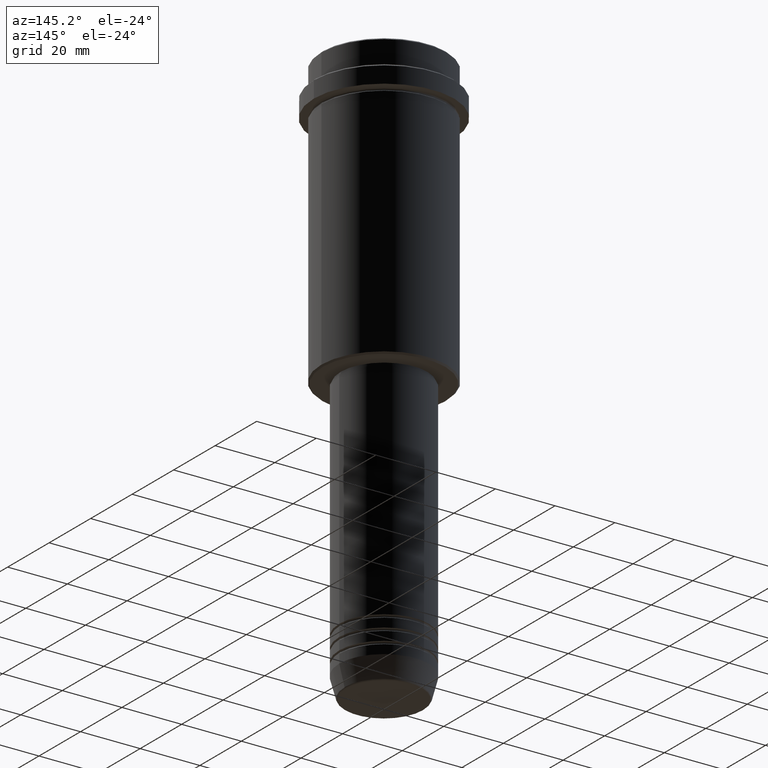
[diagram: clean part render]
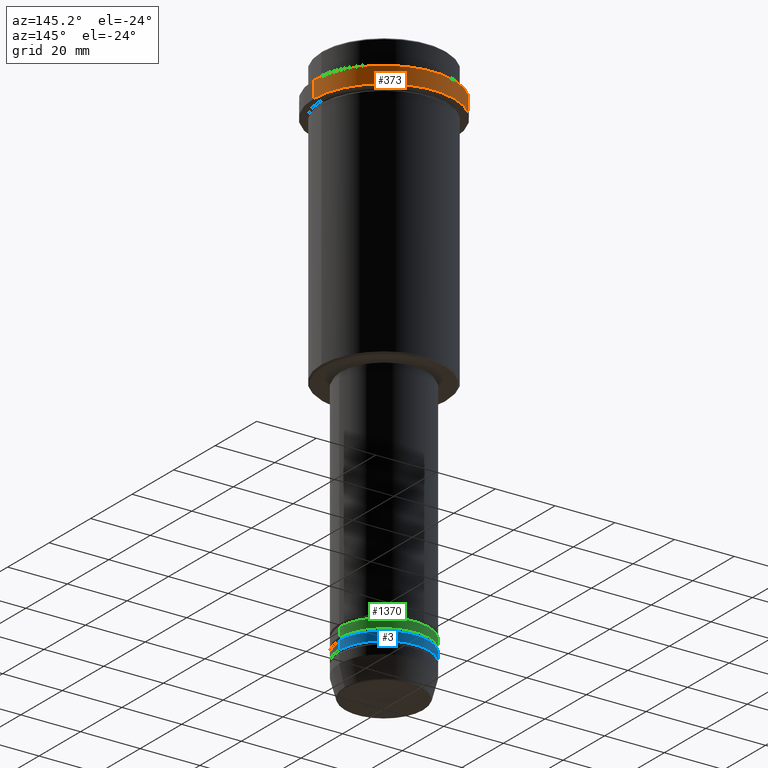
[diagram: same view with three faces highlighted in distinct colors, each labeled with its STEP entity id]
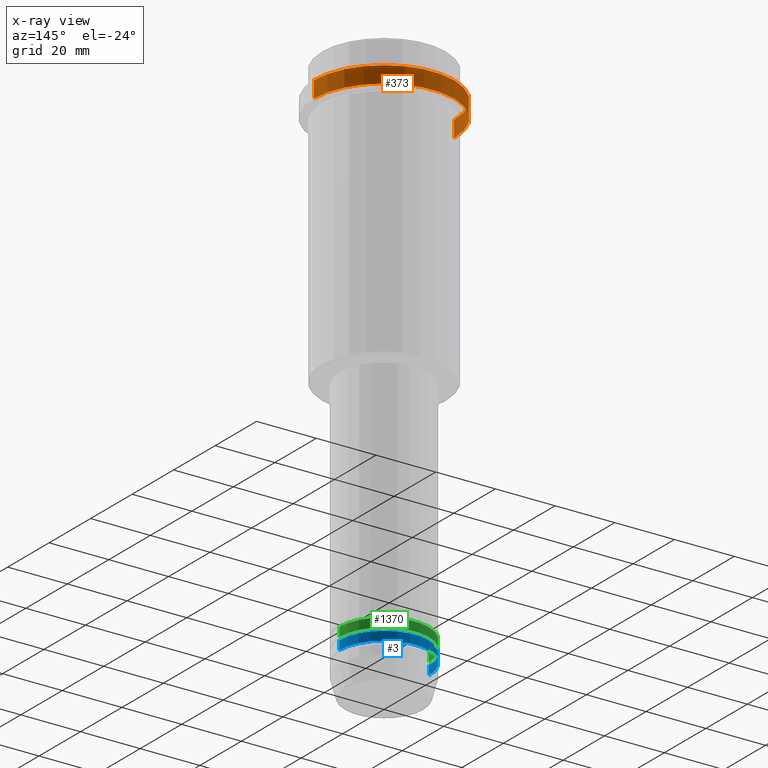
[diagram: x-ray of the same camera — body ghosted, the three highlighted faces saturated]
A machine part, auxiliary view with three faces highlighted in distinct colors.
The next image is the same camera in x-ray (body ghosted, the three faces saturated) — at least one of them is partly hidden behind the body in this view.
Their STEP definitions:

[orange] entity #373 — the highlighted cylindrical surface (partial cylindrical patch) has radius 23.5 mm, axis along (-0, -0, 1).
#17 = DIRECTION ( 'NONE',  ( -0.000000000000000000, -0.000000000000000000, 1.000000000000000000 ) ) ;
#21 = CARTESIAN_POINT ( 'NONE',  ( 23.50000000000000000, 0.000000000000000000, 0.000000000000000000 ) ) ;
#197 = CYLINDRICAL_SURFACE ( 'NONE', #679, 23.50000000000000000 ) ;
#198 = VERTEX_POINT ( 'NONE', #1050 ) ;
#216 = ORIENTED_EDGE ( 'NONE', *, *, #486, .F. ) ;
#327 = DIRECTION ( 'NONE',  ( 1.000000000000000000, 0.000000000000000000, 0.000000000000000000 ) ) ;
#339 = DIRECTION ( 'NONE',  ( 0.000000000000000000, 0.000000000000000000, -1.000000000000000000 ) ) ;
#366 = DIRECTION ( 'NONE',  ( 1.000000000000000000, 0.000000000000000000, 0.000000000000000000 ) ) ;
#373 = ADVANCED_FACE ( 'NONE', ( #870 ), #197, .T. ) ;
#398 = CARTESIAN_POINT ( 'NONE',  ( 23.50000000000000000, 0.000000000000000000, -9.500000000000000000 ) ) ;
#404 = VECTOR ( 'NONE', #17, 1000.000000000000000 ) ;
#440 = EDGE_CURVE ( 'NONE', #777, #1073, #980, .T. ) ;
#456 = EDGE_CURVE ( 'NONE', #198, #804, #1088, .T. ) ;
#486 = EDGE_CURVE ( 'NONE', #198, #1073, #692, .T. ) ;
#510 = EDGE_CURVE ( 'NONE', #804, #777, #890, .T. ) ;
#579 = CARTESIAN_POINT ( 'NONE',  ( -23.50000000000000000, 2.877919977996280320E-15, 0.000000000000000000 ) ) ;
#623 = CARTESIAN_POINT ( 'NONE',  ( -23.50000000000000711, 2.877919977996281109E-15, -15.00000000000000000 ) ) ;
#639 = EDGE_LOOP ( 'NONE', ( #936, #898, #1220, #216 ) ) ;
#679 = AXIS2_PLACEMENT_3D ( 'NONE', #1388, #1082, #327 ) ;
#681 = VECTOR ( 'NONE', #1015, 1000.000000000000000 ) ;
#692 = LINE ( 'NONE', #21, #404 ) ;
#744 = CARTESIAN_POINT ( 'NONE',  ( -23.50000000000000000, 2.877919977996280320E-15, -9.500000000000000000 ) ) ;
#777 = VERTEX_POINT ( 'NONE', #744 ) ;
#783 = DIRECTION ( 'NONE',  ( -0.000000000000000000, -0.000000000000000000, 1.000000000000000000 ) ) ;
#794 = AXIS2_PLACEMENT_3D ( 'NONE', #1311, #339, #1001 ) ;
#804 = VERTEX_POINT ( 'NONE', #623 ) ;
#870 = FACE_OUTER_BOUND ( 'NONE', #639, .T. ) ;
#890 = LINE ( 'NONE', #579, #681 ) ;
#898 = ORIENTED_EDGE ( 'NONE', *, *, #510, .T. ) ;
#936 = ORIENTED_EDGE ( 'NONE', *, *, #456, .T. ) ;
#980 = CIRCLE ( 'NONE', #794, 23.50000000000000000 ) ;
#1001 = DIRECTION ( 'NONE',  ( 1.000000000000000000, 0.000000000000000000, 0.000000000000000000 ) ) ;
#1015 = DIRECTION ( 'NONE',  ( -0.000000000000000000, -0.000000000000000000, 1.000000000000000000 ) ) ;
#1050 = CARTESIAN_POINT ( 'NONE',  ( 23.50000000000000355, 0.000000000000000000, -15.00000000000000000 ) ) ;
#1073 = VERTEX_POINT ( 'NONE', #398 ) ;
#1082 = DIRECTION ( 'NONE',  ( -0.000000000000000000, -0.000000000000000000, 1.000000000000000000 ) ) ;
#1088 = CIRCLE ( 'NONE', #1409, 23.50000000000000355 ) ;
#1220 = ORIENTED_EDGE ( 'NONE', *, *, #440, .T. ) ;
#1311 = CARTESIAN_POINT ( 'NONE',  ( 0.000000000000000000, 0.000000000000000000, -9.500000000000000000 ) ) ;
#1321 = CARTESIAN_POINT ( 'NONE',  ( 0.000000000000000000, 0.000000000000000000, -15.00000000000000000 ) ) ;
#1388 = CARTESIAN_POINT ( 'NONE',  ( 0.000000000000000000, 0.000000000000000000, 0.000000000000000000 ) ) ;
#1409 = AXIS2_PLACEMENT_3D ( 'NONE', #1321, #783, #366 ) ;

[blue] entity #3 — the highlighted cylindrical surface (partial cylindrical patch) has radius 15 mm, axis along (-0, -0, 1).
#3 = ADVANCED_FACE ( 'NONE', ( #1227 ), #746, .T. ) ;
#121 = DIRECTION ( 'NONE',  ( -0.000000000000000000, -0.000000000000000000, 1.000000000000000000 ) ) ;
#127 = CIRCLE ( 'NONE', #725, 15.00000000000000000 ) ;
#170 = CARTESIAN_POINT ( 'NONE',  ( -15.00000000000000000, 1.836970198721029589E-15, -178.9999999999998863 ) ) ;
#205 = CIRCLE ( 'NONE', #997, 15.00000000000000000 ) ;
#253 = LINE ( 'NONE', #1097, #1294 ) ;
#292 = VERTEX_POINT ( 'NONE', #311 ) ;
#298 = DIRECTION ( 'NONE',  ( -0.000000000000000000, -0.000000000000000000, 1.000000000000000000 ) ) ;
#311 = CARTESIAN_POINT ( 'NONE',  ( -15.00000000000000000, 1.836970198721029589E-15, -175.9999999999998863 ) ) ;
#356 = DIRECTION ( 'NONE',  ( 1.000000000000000000, 0.000000000000000000, 0.000000000000000000 ) ) ;
#381 = CARTESIAN_POINT ( 'NONE',  ( 0.000000000000000000, 0.000000000000000000, 0.000000000000000000 ) ) ;
#395 = DIRECTION ( 'NONE',  ( -0.000000000000000000, -0.000000000000000000, 1.000000000000000000 ) ) ;
#399 = EDGE_LOOP ( 'NONE', ( #1327, #1045, #644, #969 ) ) ;
#401 = CARTESIAN_POINT ( 'NONE',  ( 0.000000000000000000, 0.000000000000000000, -178.9999999999998863 ) ) ;
#470 = AXIS2_PLACEMENT_3D ( 'NONE', #381, #298, #1373 ) ;
#477 = EDGE_CURVE ( 'NONE', #947, #292, #253, .T. ) ;
#534 = VERTEX_POINT ( 'NONE', #587 ) ;
#538 = EDGE_CURVE ( 'NONE', #915, #292, #127, .T. ) ;
#564 = CARTESIAN_POINT ( 'NONE',  ( 15.00000000000000000, 0.000000000000000000, -175.9999999999998863 ) ) ;
#574 = CARTESIAN_POINT ( 'NONE',  ( 0.000000000000000000, 0.000000000000000000, -175.9999999999998863 ) ) ;
#587 = CARTESIAN_POINT ( 'NONE',  ( 15.00000000000000000, 0.000000000000000000, -178.9999999999998863 ) ) ;
#644 = ORIENTED_EDGE ( 'NONE', *, *, #538, .F. ) ;
#725 = AXIS2_PLACEMENT_3D ( 'NONE', #574, #1323, #356 ) ;
#726 = DIRECTION ( 'NONE',  ( -0.000000000000000000, -0.000000000000000000, 1.000000000000000000 ) ) ;
#746 = CYLINDRICAL_SURFACE ( 'NONE', #470, 15.00000000000000000 ) ;
#849 = LINE ( 'NONE', #1359, #1179 ) ;
#915 = VERTEX_POINT ( 'NONE', #564 ) ;
#947 = VERTEX_POINT ( 'NONE', #170 ) ;
#969 = ORIENTED_EDGE ( 'NONE', *, *, #1268, .F. ) ;
#997 = AXIS2_PLACEMENT_3D ( 'NONE', #401, #726, #1152 ) ;
#1045 = ORIENTED_EDGE ( 'NONE', *, *, #477, .T. ) ;
#1097 = CARTESIAN_POINT ( 'NONE',  ( -15.00000000000000000, 1.836970198721029589E-15, 0.000000000000000000 ) ) ;
#1152 = DIRECTION ( 'NONE',  ( 1.000000000000000000, 0.000000000000000000, 0.000000000000000000 ) ) ;
#1179 = VECTOR ( 'NONE', #395, 1000.000000000000000 ) ;
#1217 = EDGE_CURVE ( 'NONE', #534, #947, #205, .T. ) ;
#1227 = FACE_OUTER_BOUND ( 'NONE', #399, .T. ) ;
#1268 = EDGE_CURVE ( 'NONE', #534, #915, #849, .T. ) ;
#1294 = VECTOR ( 'NONE', #121, 1000.000000000000000 ) ;
#1323 = DIRECTION ( 'NONE',  ( -0.000000000000000000, -0.000000000000000000, 1.000000000000000000 ) ) ;
#1327 = ORIENTED_EDGE ( 'NONE', *, *, #1217, .T. ) ;
#1359 = CARTESIAN_POINT ( 'NONE',  ( 15.00000000000000000, 0.000000000000000000, 0.000000000000000000 ) ) ;
#1373 = DIRECTION ( 'NONE',  ( 1.000000000000000000, 0.000000000000000000, 0.000000000000000000 ) ) ;

[green] entity #1370 — the highlighted cylindrical surface (partial cylindrical patch) has radius 15 mm, axis along (-0, -0, 1).
#139 = VERTEX_POINT ( 'NONE', #354 ) ;
#159 = FACE_OUTER_BOUND ( 'NONE', #364, .T. ) ;
#188 = ORIENTED_EDGE ( 'NONE', *, *, #808, .F. ) ;
#203 = DIRECTION ( 'NONE',  ( -0.000000000000000000, -0.000000000000000000, 1.000000000000000000 ) ) ;
#287 = VECTOR ( 'NONE', #1319, 1000.000000000000000 ) ;
#294 = CARTESIAN_POINT ( 'NONE',  ( 0.000000000000000000, 0.000000000000000000, 0.000000000000000000 ) ) ;
#301 = CYLINDRICAL_SURFACE ( 'NONE', #569, 15.00000000000000000 ) ;
#309 = DIRECTION ( 'NONE',  ( -0.000000000000000000, -0.000000000000000000, 1.000000000000000000 ) ) ;
#354 = CARTESIAN_POINT ( 'NONE',  ( 15.00000000000000000, 0.000000000000000000, -171.9999999999998863 ) ) ;
#364 = EDGE_LOOP ( 'NONE', ( #641, #420, #857, #188 ) ) ;
#388 = VERTEX_POINT ( 'NONE', #1194 ) ;
#410 = CARTESIAN_POINT ( 'NONE',  ( 15.00000000000000000, 0.000000000000000000, 0.000000000000000000 ) ) ;
#420 = ORIENTED_EDGE ( 'NONE', *, *, #438, .T. ) ;
#438 = EDGE_CURVE ( 'NONE', #1142, #1297, #790, .T. ) ;
#569 = AXIS2_PLACEMENT_3D ( 'NONE', #294, #745, #1168 ) ;
#641 = ORIENTED_EDGE ( 'NONE', *, *, #682, .T. ) ;
#642 = CARTESIAN_POINT ( 'NONE',  ( 0.000000000000000000, 0.000000000000000000, -171.9999999999998863 ) ) ;
#659 = VECTOR ( 'NONE', #203, 1000.000000000000000 ) ;
#682 = EDGE_CURVE ( 'NONE', #388, #1142, #759, .T. ) ;
#745 = DIRECTION ( 'NONE',  ( -0.000000000000000000, -0.000000000000000000, 1.000000000000000000 ) ) ;
#759 = CIRCLE ( 'NONE', #1047, 15.00000000000000000 ) ;
#790 = LINE ( 'NONE', #1102, #287 ) ;
#808 = EDGE_CURVE ( 'NONE', #388, #139, #949, .T. ) ;
#810 = EDGE_CURVE ( 'NONE', #139, #1297, #1219, .T. ) ;
#820 = CARTESIAN_POINT ( 'NONE',  ( -15.00000000000000000, 1.836970198721029589E-15, -174.9999999999998863 ) ) ;
#848 = DIRECTION ( 'NONE',  ( 1.000000000000000000, 0.000000000000000000, 0.000000000000000000 ) ) ;
#857 = ORIENTED_EDGE ( 'NONE', *, *, #810, .F. ) ;
#901 = AXIS2_PLACEMENT_3D ( 'NONE', #642, #309, #848 ) ;
#949 = LINE ( 'NONE', #410, #659 ) ;
#1023 = DIRECTION ( 'NONE',  ( 1.000000000000000000, 0.000000000000000000, 0.000000000000000000 ) ) ;
#1047 = AXIS2_PLACEMENT_3D ( 'NONE', #1253, #1160, #1023 ) ;
#1102 = CARTESIAN_POINT ( 'NONE',  ( -15.00000000000000000, 1.836970198721029589E-15, 0.000000000000000000 ) ) ;
#1142 = VERTEX_POINT ( 'NONE', #820 ) ;
#1160 = DIRECTION ( 'NONE',  ( -0.000000000000000000, -0.000000000000000000, 1.000000000000000000 ) ) ;
#1168 = DIRECTION ( 'NONE',  ( 1.000000000000000000, 0.000000000000000000, 0.000000000000000000 ) ) ;
#1194 = CARTESIAN_POINT ( 'NONE',  ( 15.00000000000000000, 0.000000000000000000, -174.9999999999998863 ) ) ;
#1219 = CIRCLE ( 'NONE', #901, 15.00000000000000000 ) ;
#1253 = CARTESIAN_POINT ( 'NONE',  ( 0.000000000000000000, 0.000000000000000000, -174.9999999999998863 ) ) ;
#1297 = VERTEX_POINT ( 'NONE', #1377 ) ;
#1319 = DIRECTION ( 'NONE',  ( -0.000000000000000000, -0.000000000000000000, 1.000000000000000000 ) ) ;
#1370 = ADVANCED_FACE ( 'NONE', ( #159 ), #301, .T. ) ;
#1377 = CARTESIAN_POINT ( 'NONE',  ( -15.00000000000000000, 1.836970198721029589E-15, -171.9999999999998863 ) ) ;